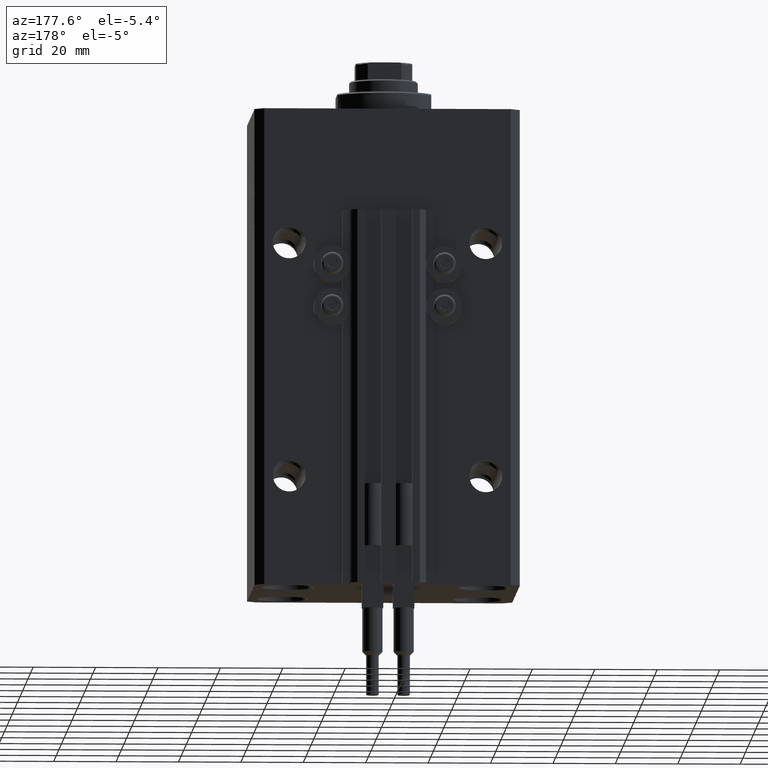
[diagram: clean part render]
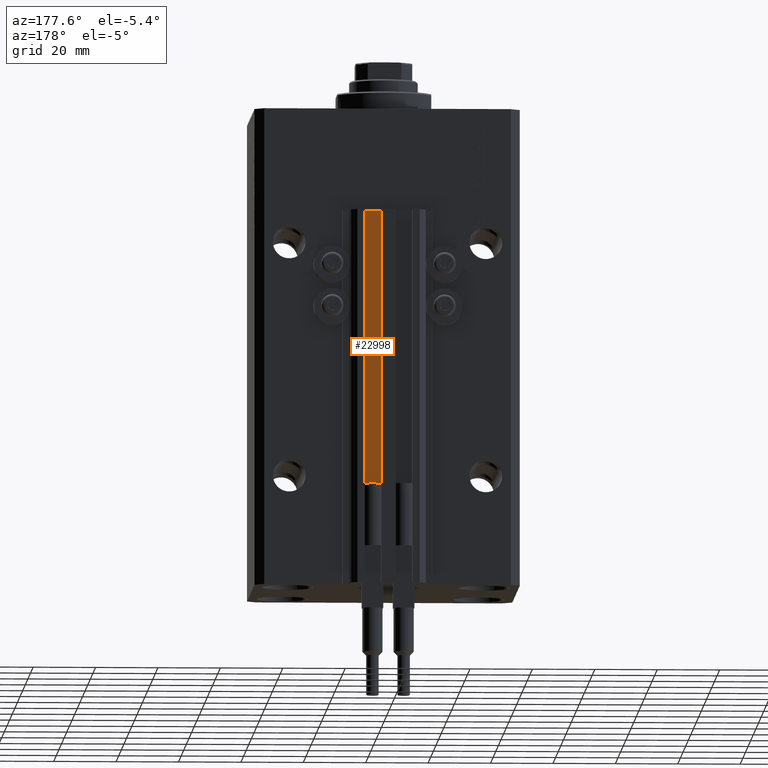
[diagram: same view with one face highlighted and labeled with its STEP entity id]
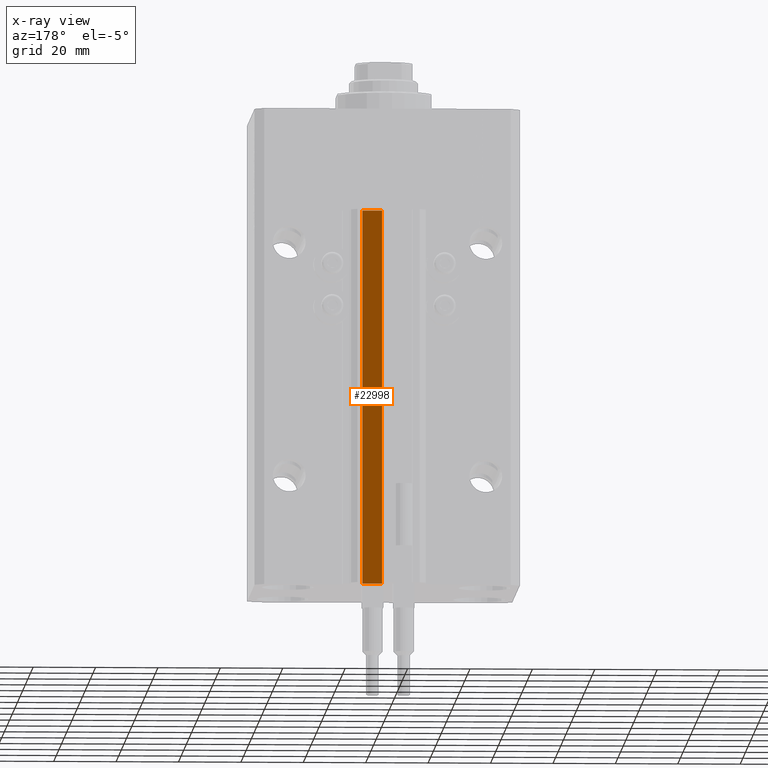
[diagram: x-ray of the same camera — body ghosted, the highlighted face saturated]
A machine part, auxiliary view. The second image highlights one B-rep face of the part: STEP entity #22998.
The next image is the same camera in x-ray: the body ghosted, the highlighted face saturated — about 0% of this face is hidden behind the body in this view.
In plain terms, the highlighted planar face has unit normal (0, 1, 0).
Its self-contained STEP definition (entity closure, byte-faithful):
#1970 = LINE ( 'NONE', #9129, #35407 ) ;
#2509 = DIRECTION ( 'NONE',  ( 0.000000000000000000, 0.000000000000000000, 1.000000000000000000 ) ) ;
#5612 = CARTESIAN_POINT ( 'NONE',  ( 8.199999999999999289, 33.50000000000000000, -33.00000000000000000 ) ) ;
#6409 = EDGE_CURVE ( 'NONE', #9482, #39218, #33418, .T. ) ;
#8591 = FACE_OUTER_BOUND ( 'NONE', #44869, .T. ) ;
#9129 = CARTESIAN_POINT ( 'NONE',  ( 8.199999999999999289, 33.50000000000000000, -33.00000000000000000 ) ) ;
#9482 = VERTEX_POINT ( 'NONE', #35020 ) ;
#9791 = VECTOR ( 'NONE', #2509, 1000.000000000000000 ) ;
#10669 = LINE ( 'NONE', #11139, #25484 ) ;
#11139 = CARTESIAN_POINT ( 'NONE',  ( 1.800000000000000933, 33.50000000000000000, -153.0000000000000000 ) ) ;
#11270 = EDGE_CURVE ( 'NONE', #39218, #36276, #1970, .T. ) ;
#12543 = VERTEX_POINT ( 'NONE', #45658 ) ;
#14365 = DIRECTION ( 'NONE',  ( 0.000000000000000000, 0.000000000000000000, 1.000000000000000000 ) ) ;
#16595 = CARTESIAN_POINT ( 'NONE',  ( 8.199999999999999289, 33.50000000000000000, -153.0000000000000000 ) ) ;
#16718 = AXIS2_PLACEMENT_3D ( 'NONE', #38780, #16719, #23918 ) ;
#16719 = DIRECTION ( 'NONE',  ( 0.000000000000000000, 1.000000000000000000, -0.000000000000000000 ) ) ;
#20194 = PLANE ( 'NONE',  #16718 ) ;
#21385 = ORIENTED_EDGE ( 'NONE', *, *, #11270, .F. ) ;
#22998 = ADVANCED_FACE ( 'NONE', ( #8591 ), #20194, .T. ) ;
#23918 = DIRECTION ( 'NONE',  ( 0.000000000000000000, 0.000000000000000000, 1.000000000000000000 ) ) ;
#24156 = EDGE_CURVE ( 'NONE', #12543, #36276, #10669, .T. ) ;
#24755 = EDGE_CURVE ( 'NONE', #9482, #12543, #31234, .T. ) ;
#25484 = VECTOR ( 'NONE', #14365, 1000.000000000000000 ) ;
#31234 = LINE ( 'NONE', #16595, #45255 ) ;
#31237 = CARTESIAN_POINT ( 'NONE',  ( 1.800000000000000933, 33.50000000000000000, -33.00000000000000000 ) ) ;
#31639 = DIRECTION ( 'NONE',  ( -1.000000000000000000, 0.000000000000000000, 0.000000000000000000 ) ) ;
#33418 = LINE ( 'NONE', #47780, #9791 ) ;
#33504 = ORIENTED_EDGE ( 'NONE', *, *, #24156, .T. ) ;
#34704 = DIRECTION ( 'NONE',  ( -1.000000000000000000, 0.000000000000000000, 0.000000000000000000 ) ) ;
#35020 = CARTESIAN_POINT ( 'NONE',  ( 8.199999999999999289, 33.50000000000000000, -153.0000000000000000 ) ) ;
#35407 = VECTOR ( 'NONE', #31639, 1000.000000000000000 ) ;
#36276 = VERTEX_POINT ( 'NONE', #31237 ) ;
#36946 = ORIENTED_EDGE ( 'NONE', *, *, #24755, .T. ) ;
#38780 = CARTESIAN_POINT ( 'NONE',  ( 8.199999999999999289, 33.50000000000000000, -153.0000000000000000 ) ) ;
#39218 = VERTEX_POINT ( 'NONE', #5612 ) ;
#43267 = ORIENTED_EDGE ( 'NONE', *, *, #6409, .F. ) ;
#44869 = EDGE_LOOP ( 'NONE', ( #21385, #43267, #36946, #33504 ) ) ;
#45255 = VECTOR ( 'NONE', #34704, 1000.000000000000000 ) ;
#45658 = CARTESIAN_POINT ( 'NONE',  ( 1.800000000000000933, 33.50000000000000000, -153.0000000000000000 ) ) ;
#47780 = CARTESIAN_POINT ( 'NONE',  ( 8.199999999999999289, 33.50000000000000000, -153.0000000000000000 ) ) ;